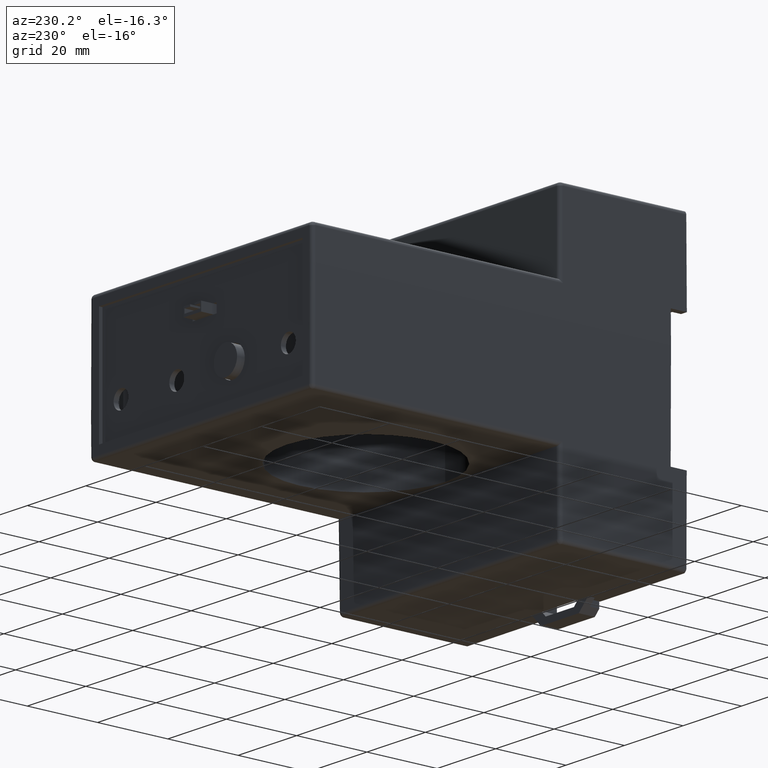
[diagram: clean part render]
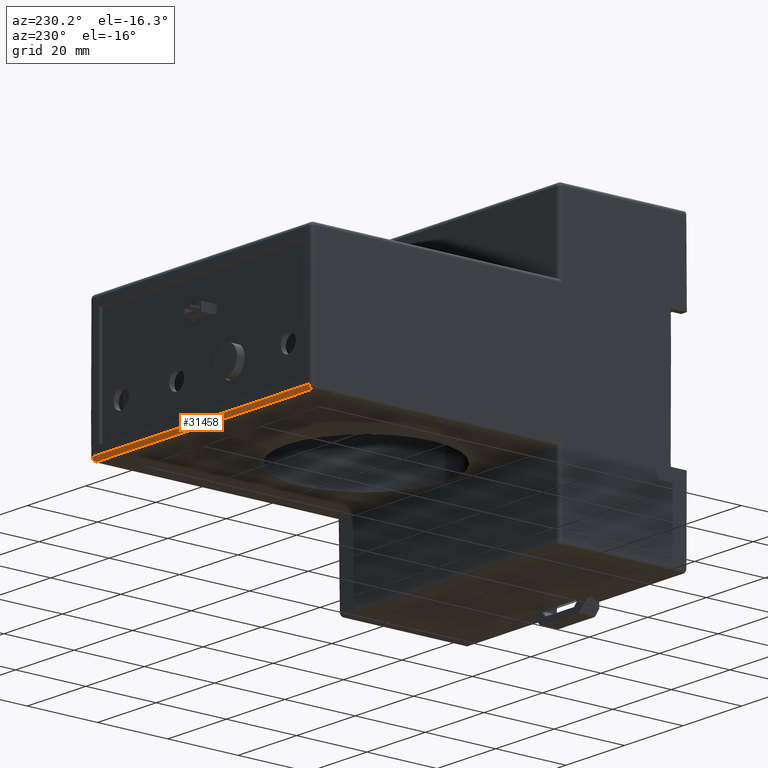
[diagram: same view with one face highlighted and labeled with its STEP entity id]
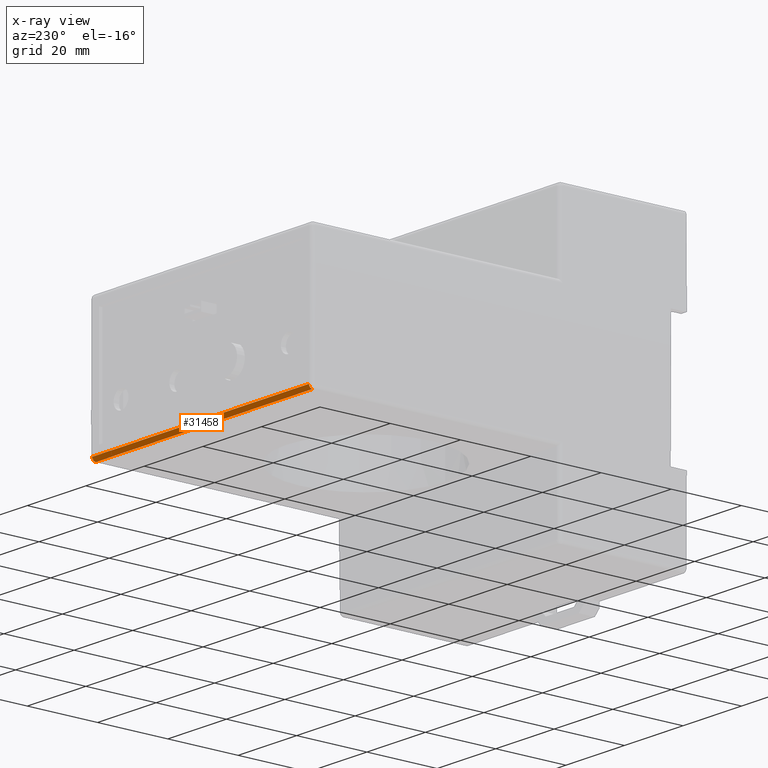
[diagram: x-ray of the same camera — body ghosted, the highlighted face saturated]
A machine part, auxiliary view. The second image highlights one B-rep face of the part: STEP entity #31458.
The next image is the same camera in x-ray: the body ghosted, the highlighted face saturated — about 0% of this face is hidden behind the body in this view.
In plain terms, the highlighted cylindrical surface (edge-blend (fillet) strip) has radius 1 mm, axis along (-1, 0, 0).
Its self-contained STEP definition (entity closure, byte-faithful):
#2192 = CARTESIAN_POINT ( 'NONE',  ( -1.454561867678720422, 1.203706447875267704, -1.460630495747356372 ) ) ;
#2706 = CARTESIAN_POINT ( 'NONE',  ( 1.459030116535679600, 1.185429037235630201, -1.500000026854836355 ) ) ;
#4719 = EDGE_LOOP ( 'NONE', ( #13159, #24389, #21024, #10732, #28634 ) ) ;
#5267 = VERTEX_POINT ( 'NONE', #21152 ) ;
#5304 = CARTESIAN_POINT ( 'NONE',  ( -1.454561870189641670, 1.164336082238254022, -1.499999999912245974 ) ) ;
#6033 = EDGE_CURVE ( 'NONE', #5267, #14160, #21167, .T. ) ;
#6737 = DIRECTION ( 'NONE',  ( -1.000000000000000000, 0.000000000000000000, 0.000000000000000000 ) ) ;
#7671 = CARTESIAN_POINT ( 'NONE',  ( 0.4878327876402278607, 1.203706213173375339, -1.460630112386946067 ) ) ;
#8249 = AXIS2_PLACEMENT_3D ( 'NONE', #29782, #24607, #11313 ) ;
#9108 = CARTESIAN_POINT ( 'NONE',  ( 1.459030116833070601, 1.203641429639979110, -1.463245735205745079 ) ) ;
#10732 = ORIENTED_EDGE ( 'NONE', *, *, #13948, .F. ) ;
#11270 = CARTESIAN_POINT ( 'NONE',  ( 1.459030116535681154, 1.203509526437901656, -1.464560370515620047 ) ) ;
#11313 = DIRECTION ( 'NONE',  ( 0.000000000000000000, 0.000000000000000000, 1.000000000000000000 ) ) ;
#11798 = CARTESIAN_POINT ( 'NONE',  ( 1.459030115299700725, 1.203708774073009691, -1.460629920708433005 ) ) ;
#12893 = EDGE_CURVE ( 'NONE', #5267, #16448, #16166, .T. ) ;
#13159 = ORIENTED_EDGE ( 'NONE', *, *, #6033, .T. ) ;
#13777 = FACE_OUTER_BOUND ( 'NONE', #4719, .T. ) ;
#13948 = EDGE_CURVE ( 'NONE', #16448, #24190, #29754, .T. ) ;
#14160 = VERTEX_POINT ( 'NONE', #5304 ) ;
#15260 = DIRECTION ( 'NONE',  ( 0.000000000000000000, 0.000000000000000000, 1.000000000000000000 ) ) ;
#15296 = CARTESIAN_POINT ( 'NONE',  ( 1.459030116535681154, 1.203509526437901656, -1.464560370515620047 ) ) ;
#15323 = CARTESIAN_POINT ( 'NONE',  ( -0.4833645400192463359, 1.203706213171977124, -1.460630304065438700 ) ) ;
#15487 = CARTESIAN_POINT ( 'NONE',  ( 0.002234123035681287537, 1.164336082173376141, -1.500000000000035527 ) ) ;
#16166 =( BOUNDED_CURVE ( )  B_SPLINE_CURVE ( 3, ( #19204, #2706, #30036, #16527 ),
 .UNSPECIFIED., .F., .F. ) 
 B_SPLINE_CURVE_WITH_KNOTS ( ( 4, 4 ),
 ( 0.000000000000000000, 1.000000000000000000 ),
 .UNSPECIFIED. ) 
 CURVE ( )  GEOMETRIC_REPRESENTATION_ITEM ( )  RATIONAL_B_SPLINE_CURVE ( ( 0.9960285729122809739, 0.8141593023369430027, 0.8004647043422050690, 0.9549447789280659515 ) ) 
 REPRESENTATION_ITEM ( '' )  );
#16297 = CYLINDRICAL_SURFACE ( 'NONE', #8249, 0.03937007899999996757 ) ;
#16448 = VERTEX_POINT ( 'NONE', #15296 ) ;
#16527 = CARTESIAN_POINT ( 'NONE',  ( 1.459030116535681154, 1.203509526437901656, -1.464560370515620047 ) ) ;
#16812 = EDGE_CURVE ( 'NONE', #19584, #14160, #28703, .T. ) ;
#19204 = CARTESIAN_POINT ( 'NONE',  ( 1.459030116351252238, 1.164336082433041319, -1.499999999948870011 ) ) ;
#19584 = VERTEX_POINT ( 'NONE', #21275 ) ;
#21024 = ORIENTED_EDGE ( 'NONE', *, *, #29317, .T. ) ;
#21152 = CARTESIAN_POINT ( 'NONE',  ( 1.459030116351252238, 1.164336082433041319, -1.499999999948870011 ) ) ;
#21167 = LINE ( 'NONE', #15487, #21704 ) ;
#21275 = CARTESIAN_POINT ( 'NONE',  ( -1.454561867678720422, 1.203706447875267704, -1.460630495747356372 ) ) ;
#21704 = VECTOR ( 'NONE', #27038, 39.37007874015748143 ) ;
#22082 = CARTESIAN_POINT ( 'NONE',  ( 1.459030116832568780, 1.203706212582492219, -1.461934397729420132 ) ) ;
#22185 = B_SPLINE_CURVE_WITH_KNOTS ( 'NONE', 3,
 ( #2192, #15323, #7671, #29167 ),
 .UNSPECIFIED., .F., .F.,
 ( 4, 4 ),
 ( 0.000000000000000000, 1.000000000000000000 ),
 .UNSPECIFIED. ) ;
#24190 = VERTEX_POINT ( 'NONE', #11798 ) ;
#24389 = ORIENTED_EDGE ( 'NONE', *, *, #16812, .F. ) ;
#24607 = DIRECTION ( 'NONE',  ( -1.000000000000000000, 0.000000000000000000, 0.000000000000000000 ) ) ;
#27038 = DIRECTION ( 'NONE',  ( -1.000000000000000000, 0.000000000000000000, 0.000000000000000000 ) ) ;
#28634 = ORIENTED_EDGE ( 'NONE', *, *, #12893, .F. ) ;
#28703 = CIRCLE ( 'NONE', #34946, 0.03937007899999996757 ) ;
#29167 = CARTESIAN_POINT ( 'NONE',  ( 1.459030115299700725, 1.203708774073009691, -1.460629920708433005 ) ) ;
#29317 = EDGE_CURVE ( 'NONE', #19584, #24190, #22185, .T. ) ;
#29754 =( BOUNDED_CURVE ( )  B_SPLINE_CURVE ( 3, ( #11270, #9108, #22082, #32915 ),
 .UNSPECIFIED., .F., .F. ) 
 B_SPLINE_CURVE_WITH_KNOTS ( ( 4, 4 ),
 ( 0.000000000000000000, 1.000000000000000000 ),
 .UNSPECIFIED. ) 
 CURVE ( )  GEOMETRIC_REPRESENTATION_ITEM ( )  RATIONAL_B_SPLINE_CURVE ( ( 0.9549447762650690175, 0.9664309902107933725, 0.9788469611474068799, 0.9921926890749097616 ) ) 
 REPRESENTATION_ITEM ( '' )  );
#29782 = CARTESIAN_POINT ( 'NONE',  ( 1.459030116535681154, 1.164336134173374004, -1.460629921000035303 ) ) ;
#30036 = CARTESIAN_POINT ( 'NONE',  ( 1.459030116535682708, 1.201367717613374353, -1.485907009878647766 ) ) ;
#30885 = CARTESIAN_POINT ( 'NONE',  ( -1.454561870464318840, 1.164336134173374004, -1.460629921000035303 ) ) ;
#31458 = ADVANCED_FACE ( 'NONE', ( #13777 ), #16297, .T. ) ;
#32915 = CARTESIAN_POINT ( 'NONE',  ( 1.459030115299700725, 1.203708774073009691, -1.460629920708433005 ) ) ;
#34946 = AXIS2_PLACEMENT_3D ( 'NONE', #30885, #6737, #15260 ) ;